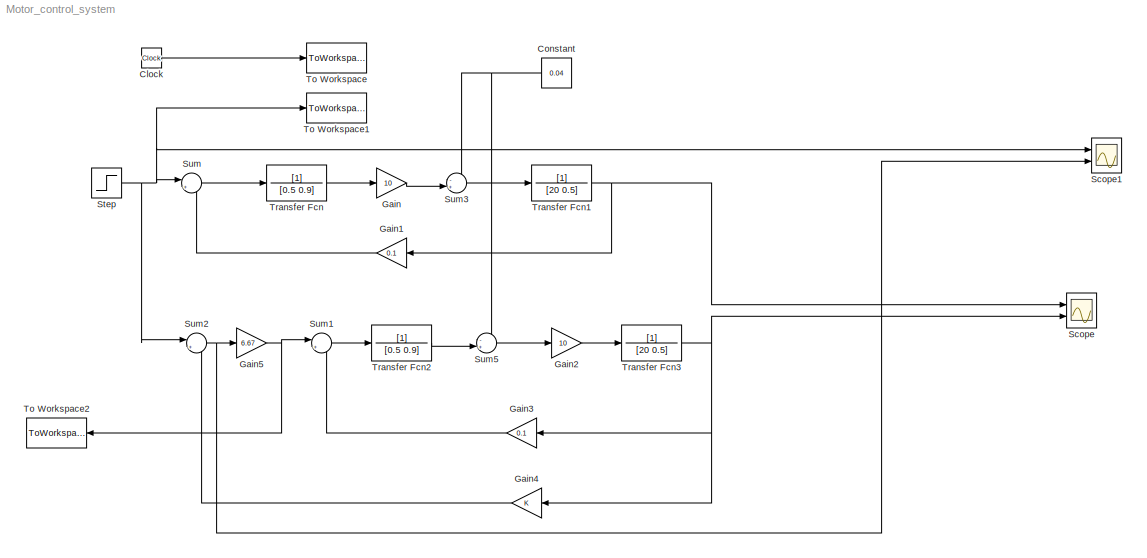
MODEL Motor_control_system
KIND model
BLOCK [Clock] Clock
  Decimation = 10
BLOCK [Constant] Constant
  Value = 0.04
BLOCK [Gain] Gain
  Gain = 10
  OutDataTypeMode = Inherit via internal rule
  ParameterDataTypeMode = Inherit via internal rule
  SaturateOnIntegerOverflow = off
BLOCK [Gain] Gain1
  Gain = 0.1
  OutDataTypeMode = Inherit via internal rule
  ParameterDataTypeMode = Inherit via internal rule
  SaturateOnIntegerOverflow = off
BLOCK [Gain] Gain2
  Gain = 10
  OutDataTypeMode = Inherit via internal rule
  ParameterDataTypeMode = Inherit via internal rule
  SaturateOnIntegerOverflow = off
BLOCK [Gain] Gain3
  Gain = 0.1
  OutDataTypeMode = Inherit via internal rule
  ParameterDataTypeMode = Inherit via internal rule
  SaturateOnIntegerOverflow = off
BLOCK [Gain] Gain4
  OutDataTypeMode = Inherit via internal rule
  ParameterDataTypeMode = Inherit via internal rule
  SaturateOnIntegerOverflow = off
BLOCK [Gain] Gain5
  Gain = 6.67
  OutDataTypeMode = Inherit via internal rule
  ParameterDataTypeMode = Inherit via internal rule
  SaturateOnIntegerOverflow = off
BLOCK [Scope] Scope
  DataFormat = StructureWithTime
  NumInputPorts = 2
  Ports = [2]
  TimeRange = 4
  YMax = 7~2.0377
  YMin = 0~1.3177
BLOCK [Scope] Scope1
  DataFormat = StructureWithTime
  NumInputPorts = 2
  Ports = [2]
  SaveName = ScopeData1
  TimeRange = 4
  YMax = 7~2.0377
  YMin = 0~1.3177
BLOCK [Step] Step
  SampleTime = 0
BLOCK [Sum] Sum
  IconShape = round
  InputSameDT = off
  Inputs = |+-
  OutDataTypeMode = Inherit via internal rule
  Ports = [2, 1]
  SaturateOnIntegerOverflow = off
BLOCK [Sum] Sum1
  IconShape = round
  InputSameDT = off
  Inputs = |+-
  OutDataTypeMode = Inherit via internal rule
  Ports = [2, 1]
  SaturateOnIntegerOverflow = off
BLOCK [Sum] Sum2
  IconShape = round
  InputSameDT = off
  Inputs = |+-
  OutDataTypeMode = Inherit via internal rule
  Ports = [2, 1]
  SaturateOnIntegerOverflow = off
BLOCK [Sum] Sum3
  IconShape = round
  InputSameDT = off
  Inputs = -+|
  OutDataTypeMode = Inherit via internal rule
  Ports = [2, 1]
  SaturateOnIntegerOverflow = off
BLOCK [Sum] Sum5
  IconShape = round
  InputSameDT = off
  Inputs = -+|
  OutDataTypeMode = Inherit via internal rule
  Ports = [2, 1]
  SaturateOnIntegerOverflow = off
BLOCK [ToWorkspace] To Workspace
  MaxDataPoints = inf
  SampleTime = -1
  SaveFormat = Array
  VariableName = time
BLOCK [ToWorkspace] To Workspace1
  MaxDataPoints = inf
  SampleTime = -1
  SaveFormat = Array
  VariableName = ol
BLOCK [ToWorkspace] To Workspace2
  MaxDataPoints = inf
  SampleTime = -1
  SaveFormat = Array
  VariableName = cl
BLOCK [TransferFcn] Transfer Fcn
  Denominator = [0.5 0.9]
BLOCK [TransferFcn] Transfer Fcn1
  Denominator = [20 0.5]
BLOCK [TransferFcn] Transfer Fcn2
  Denominator = [0.5 0.9]
BLOCK [TransferFcn] Transfer Fcn3
  Denominator = [20 0.5]
LINE Clock:1 -> To Workspace:1
NET Constant:1 -> Sum3:1, Sum5:1
LINE Gain1:1 -> Sum:2
LINE Gain2:1 -> Transfer Fcn3:1
LINE Gain3:1 -> Sum1:2
LINE Gain4:1 -> Sum2:2
NET Gain5:1 -> Sum1:1, To Workspace2:1
LINE Gain:1 -> Sum3:2
NET Step:1 -> Scope1:1, Sum2:1, Sum:1, To Workspace1:1
LINE Sum1:1 -> Transfer Fcn2:1
NET Sum2:1 -> Gain5:1, Scope1:2
LINE Sum3:1 -> Transfer Fcn1:1
LINE Sum5:1 -> Gain2:1
LINE Sum:1 -> Transfer Fcn:1
NET Transfer Fcn1:1 -> Gain1:1, Scope:1
LINE Transfer Fcn2:1 -> Sum5:2
NET Transfer Fcn3:1 -> Gain3:1, Gain4:1, Scope:2
LINE Transfer Fcn:1 -> Gain:1
note: NET lines group one-source signal fan-out (src -> all destinations, sorted); 1:1 wires keep LINE
